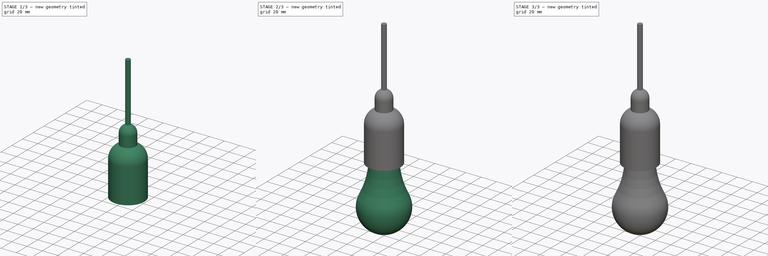
[diagram: build sequence overview — one tinted view per stage of 3, left to right]
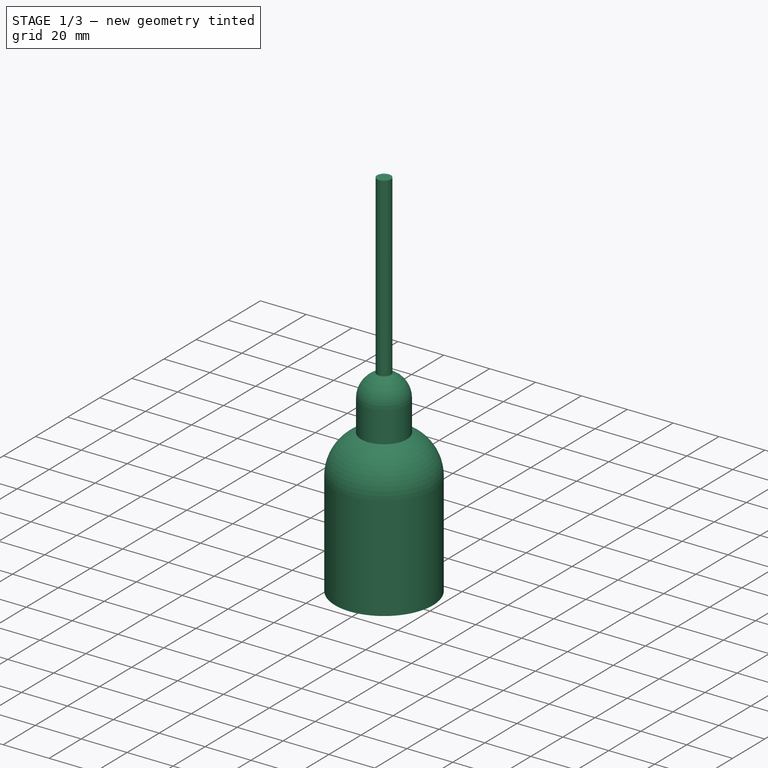
[diagram: stage 1 of 3 — iso view after this stage's code; geometry added in this stage tinted green]
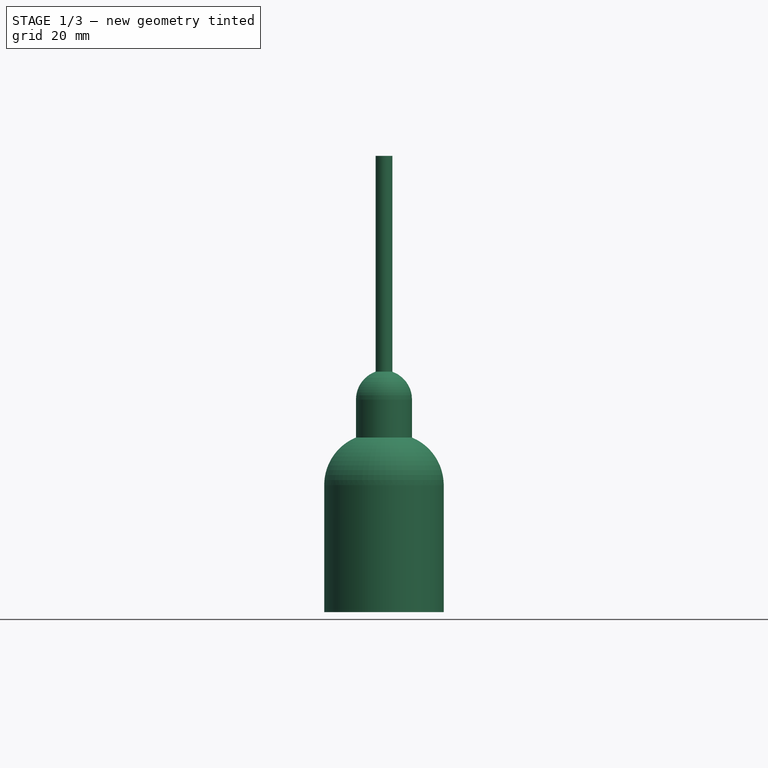
[diagram: stage 1 of 3 — front view after this stage's code; geometry added in this stage tinted green]
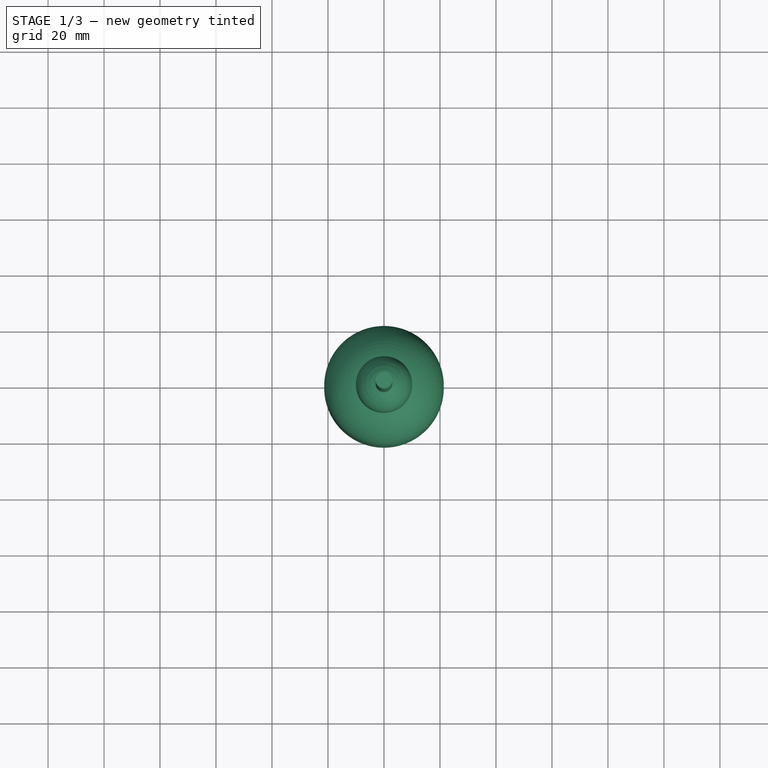
[diagram: stage 1 of 3 — top view after this stage's code; geometry added in this stage tinted green]
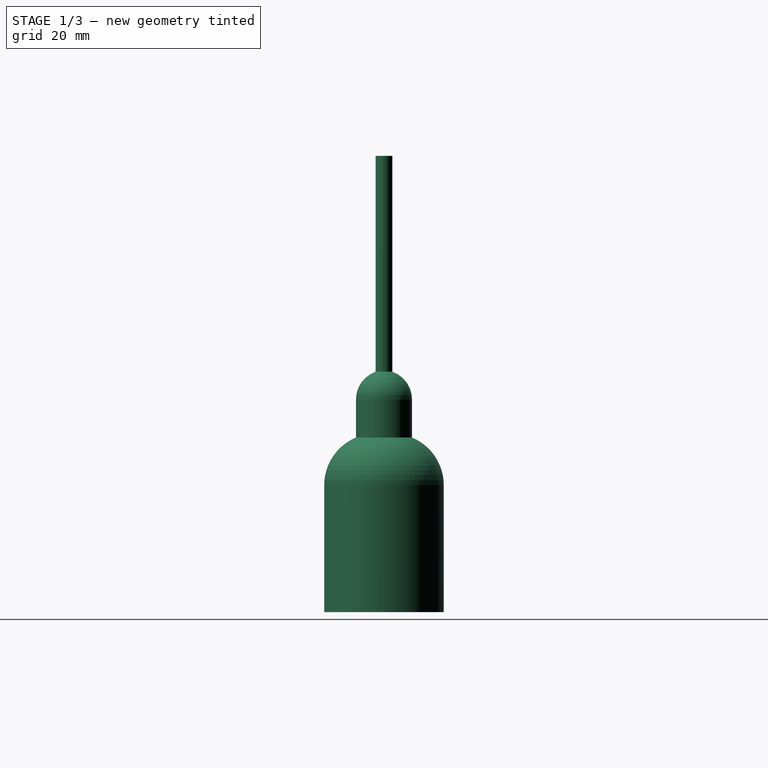
[diagram: stage 1 of 3 — right view after this stage's code; geometry added in this stage tinted green]
FCSTD DOCUMENT  (FreeCAD 0.19R24267 +99 (Git))
Label: Lamp
License: All rights reserved
LicenseURL: http://en.wikipedia.org/wiki/All_rights_reserved
objects: Sketcher::SketchObject×6, PartDesign::Body×5, PartDesign::Revolution×4, Part::Cylinder×2, PartDesign::AdditiveLoft×1
note: 23 computed .brp shape members not serialized (recipe doc carries the construction recipe); baked Part::Feature solids carry a one-line shape summary decoded from their .brp

FEATURE [PartDesign::Body] Body003
  Group = -> [Sketch004,Revolution002]
  Origin = -> Origin003
  Tip = -> Revolution002
FEATURE [Part::Cylinder] Cylinder001
  Angle = 360
  AttacherType = Attacher::AttachEngine3D
  Height = 100
  Radius = 3
FEATURE [Sketcher::SketchObject] Sketch005
  FullyConstrained = true
  MapMode = 5
  Placement = pos=(0,0,0) rot=(1,0,0;1.5708rad)
  Support = -> [XZ_Plane004]
  expr: Constraints[7] = 37.7mm / 2 + 0.5mm
  expr: Constraints[6] = 15mm / 2 + 0.5mm
  expr: Constraints[8] = 2mm + 59mm + 2mm
  sketch-geometry (10):
    g0: LineSegment StartX=-8 StartY=12.9398 StartZ=0 EndX=-8 EndY=-2 EndZ=0
    g1: ArcOfCircle CenterX=-2.95 CenterY=-17.6031 CenterZ=0 NormalX=0 NormalY=0 NormalZ=1 AngleXU=0 Radius=16.4 StartAngle=1.88381 EndAngle=3.14159
    g2: LineSegment StartX=-19.35 StartY=-17.6031 StartZ=0 EndX=-19.35 EndY=-63 EndZ=0
    g3: LineSegment StartX=-19.35 StartY=-63 StartZ=0 EndX=-21.35 EndY=-63 EndZ=0
    g4: LineSegment StartX=-21.35 StartY=-17.6031 StartZ=0 EndX=-21.35 EndY=-63 EndZ=0
    g5: ArcOfCircle CenterX=-2.95 CenterY=-17.6031 CenterZ=0 NormalX=0 NormalY=0 NormalZ=1 AngleXU=0 Radius=18.4 StartAngle=1.964 EndAngle=3.14159
    g6: LineSegment StartX=-10 StartY=-0.607316 StartZ=0 EndX=-10 EndY=12.9398 EndZ=0
    g7: LineSegment StartX=-3 StartY=20.75 StartZ=0 EndX=-3 EndY=22.9097 EndZ=0
    g8: ArcOfCircle CenterX=0.6 CenterY=12.9398 CenterZ=0 NormalX=0 NormalY=0 NormalZ=1 AngleXU=0 Radius=10.6 StartAngle=1.91731 EndAngle=3.14159
    g9: ArcOfCircle CenterX=0.6 CenterY=12.9398 CenterZ=0 NormalX=0 NormalY=0 NormalZ=1 AngleXU=0 Radius=8.6 StartAngle=2.0027 EndAngle=3.14159
  constraints (28):
    c: Vertical(g0)
    c: Tangent(g1,g2) = -1.5708
    c: Coincident(g2,g3)
    c: Horizontal(g3)
    c: Vertical(g2)
    c: DistanceY(g0,g-1) = 2
    c: DistanceX(g0,g-1) = 8
    c: DistanceX(g1,g-1) = 19.35
    c: DistanceY(g2,g-1) = 63
    c: DistanceX(g3,g2) = 2
    c: Coincident(g4,g3)
    c: Vertical(g4)
    c: Coincident(g5,g1)
    c: Coincident(g6,g5)
    c: Vertical(g6)
    c: DistanceX(g5,g0) = 2
    c: Vertical(g7)
    c: Tangent(g5,g4) = -1.5708
    c: DistanceX(g7,g-1) = 3
    c: Tangent(g6,g8) = 1.5708
    c: Tangent(g0,g9) = -1.5708
    c: Coincident(g8,g9)
    c: Coincident(g0,g1)
    c: Radius(g1) = 16.4
    c: Coincident(g7,g9)
    c: Coincident(g7,g8)
    c: Radius(g9) = 8.6
    c: DistanceY(g-1,g7) = 20.75
FEATURE [PartDesign::Revolution] Revolution003
  Angle = 360
  Axis = (0,-2e-16,1)
  Base = (0,0,0)
  Placement = pos=(0,0,0) rot=(1,0,0;1.5708rad)
  Profile = -> Sketch005
  ReferenceAxis = -> Sketch005 [V_Axis]
FEATURE [PartDesign::Body] Body004
  Group = -> [Sketch005,Revolution003]
  Origin = -> Origin004
  Tip = -> Revolution003
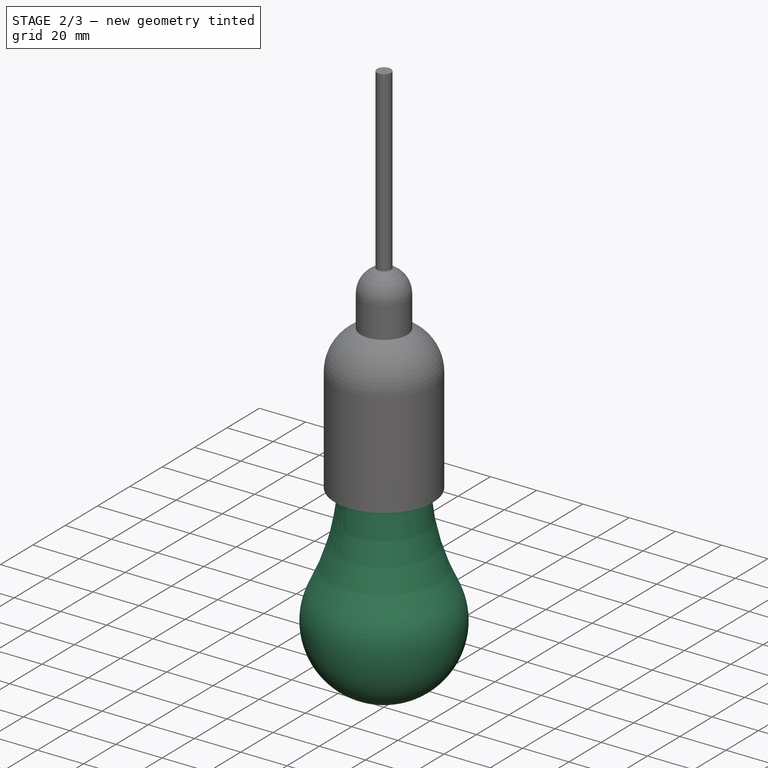
[diagram: stage 2 of 3 — iso view after this stage's code; geometry added in this stage tinted green]
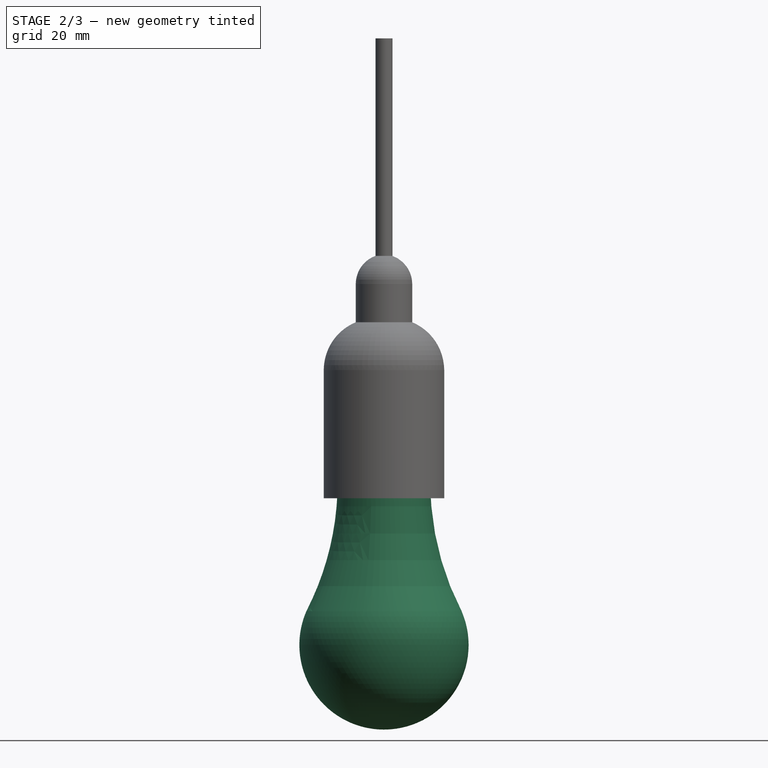
[diagram: stage 2 of 3 — front view after this stage's code; geometry added in this stage tinted green]
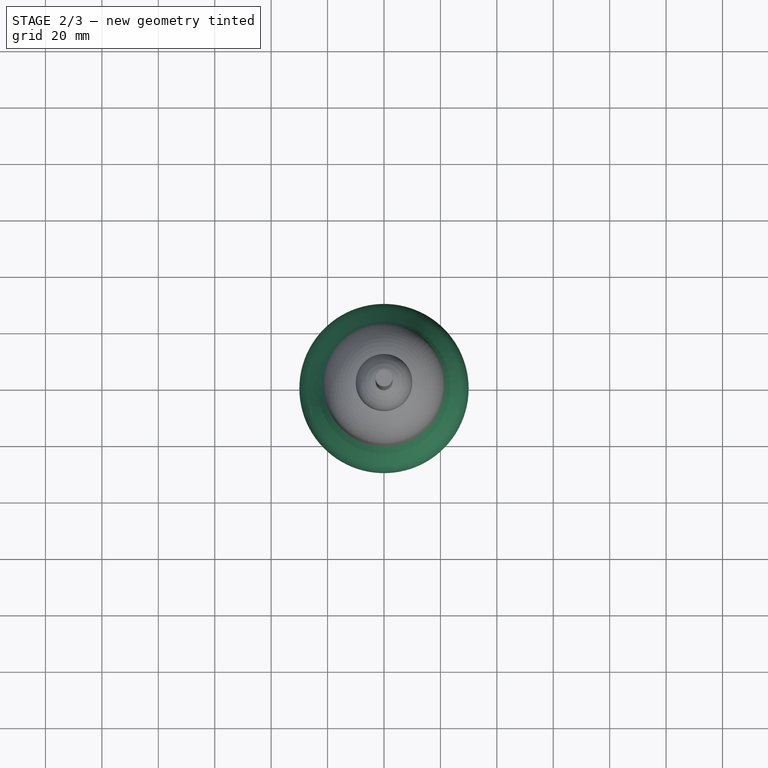
[diagram: stage 2 of 3 — top view after this stage's code; geometry added in this stage tinted green]
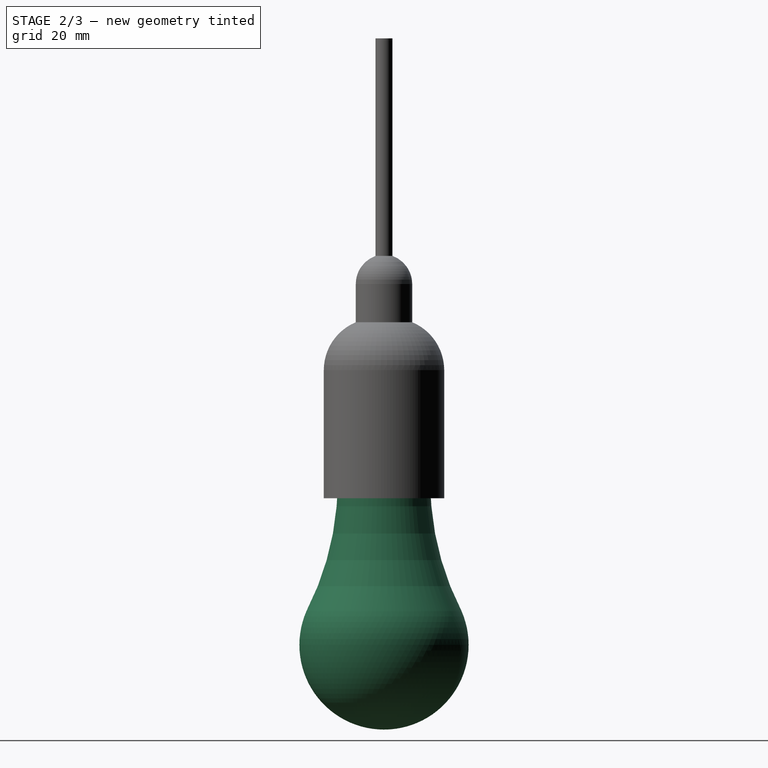
[diagram: stage 2 of 3 — right view after this stage's code; geometry added in this stage tinted green]
FEATURE [Sketcher::SketchObject] Sketch002
  FullyConstrained = true
  MapMode = 5
  Placement = pos=(0,0,0) rot=(1,0,0;1.5708rad)
  Support = -> [XZ_Plane001]
  sketch-geometry (5):
    g0: LineSegment StartX=-18.85 StartY=-61 StartZ=0 EndX=-18.85 EndY=-17 EndZ=0
    g1: ArcOfCircle CenterX=-3.26311 CenterY=-17 CenterZ=0 NormalX=0 NormalY=0 NormalZ=1 AngleXU=0 Radius=15.5869 StartAngle=1.84608 EndAngle=3.14159
    g2: LineSegment StartX=-7.5 StartY=-2 StartZ=0 EndX=0 EndY=-2 EndZ=0
    g3: LineSegment StartX=0 StartY=-61 StartZ=0 EndX=-18.85 EndY=-61 EndZ=0
    g4: LineSegment StartX=0 StartY=-2 StartZ=0 EndX=0 EndY=-61 EndZ=0
  constraints (15):
    c: Vertical(g0)
    c: Tangent(g0,g1) = 1.5708
    c: Coincident(g1,g2)
    c: Coincident(g3,g0)
    c: Horizontal(g3)
    c: DistanceY(g3,g2) = 59
    c: DistanceY(g2,g-1) = 2
    c: PointOnObject(g2,g-2)
    c: PointOnObject(g3,g-2)
    c: Coincident(g4,g2)
    c: Coincident(g4,g3)
    c: DistanceX(g0,g3) = 18.85
    c: Horizontal(g2)
    c: DistanceY(g0,g1) = 15
    c: DistanceX(g1,g2) = 7.5
FEATURE [PartDesign::Revolution] Revolution
  Angle = 360
  Axis = (0,2e-16,1)
  Base = (0,0,0)
  Placement = pos=(0,0,0) rot=(1,0,0;1.5708rad)
  Profile = -> Sketch002
  ReferenceAxis = -> Sketch002 [V_Axis]
FEATURE [PartDesign::Body] Body001
  Group = -> [Sketch002,Revolution]
  Origin = -> Origin001
  Tip = -> Revolution
FEATURE [Sketcher::SketchObject] Sketch003
  FullyConstrained = true
  MapMode = 5
  Placement = pos=(0,0,0) rot=(1,0,0;1.5708rad)
  Support = -> [XZ_Plane002]
  expr: Constraints[12] = 2mm + 59mm
  sketch-geometry (4):
    g0: LineSegment StartX=0 StartY=-61 StartZ=0 EndX=0 EndY=-103 EndZ=0
    g1: LineSegment StartX=0 StartY=-103 StartZ=0 EndX=-27.5 EndY=-103 EndZ=0
    g2: LineSegment StartX=-16.5 StartY=-61 StartZ=0 EndX=0 EndY=-61 EndZ=0
    g3: ArcOfCircle CenterX=-116.43 CenterY=-57.2682 CenterZ=0 NormalX=0 NormalY=0 NormalZ=1 AngleXU=0 Radius=100 StartAngle=5.80821 EndAngle=6.24586
  constraints (13):
    c: PointOnObject(g0,g-2)
    c: Vertical(g0)
    c: Coincident(g0,g1)
    c: Coincident(g2,g0)
    c: Horizontal(g2)
    c: DistanceX(g2,g0) = 16.5
    c: Horizontal(g1)
    c: DistanceX(g1,g0) = 27.5
    c: Coincident(g3,g2)
    c: Coincident(g3,g1)
    c: DistanceY(g0,g0) = 42
    c: Radius(g3) = 100
    c: DistanceY(g0,g-1) = 61
FEATURE [PartDesign::Revolution] Revolution001
  Angle = 360
  Axis = (0,2e-16,1)
  Base = (0,0,0)
  Placement = pos=(0,0,0) rot=(1,0,0;1.5708rad)
  Profile = -> Sketch003
  ReferenceAxis = -> Sketch003 [V_Axis]
FEATURE [PartDesign::Body] Body002
  Group = -> [Sketch003,Revolution001]
  Origin = -> Origin002
  Tip = -> Revolution001
FEATURE [Sketcher::SketchObject] Sketch004
  FullyConstrained = true
  MapMode = 5
  Placement = pos=(0,0,0) rot=(1,0,0;1.5708rad)
  Support = -> [XZ_Plane003]
  expr: Constraints[9] = 2mm + 59mm + 42mm
  sketch-geometry (3):
    g0: LineSegment StartX=-5.5e-15 StartY=-103 StartZ=0 EndX=-27.4955 EndY=-103 EndZ=0
    g1: ArcOfCircle CenterX=0 CenterY=-115 CenterZ=0 NormalX=0 NormalY=0 NormalZ=1 AngleXU=0 Radius=30 StartAngle=2.73008 EndAngle=4.71239
    g2: LineSegment StartX=-5.5e-15 StartY=-145 StartZ=0 EndX=-5.5e-15 EndY=-103 EndZ=0
  constraints (10):
    c: PointOnObject(g0,g-2)
    c: Horizontal(g0)
    c: Coincident(g1,g2)
    c: Coincident(g2,g0)
    c: Vertical(g2)
    c: Coincident(g1,g0)
    c: PointOnObject(g1,g-2)
    c: Diameter(g1) = 60
    c: DistanceY(g2,g2) = 42
    c: DistanceY(g0,g-1) = 103
FEATURE [PartDesign::Revolution] Revolution002
  Angle = 360
  Axis = (0,2e-16,1)
  Base = (0,0,0)
  Placement = pos=(0,0,0) rot=(1,0,0;1.5708rad)
  Profile = -> Sketch004
  ReferenceAxis = -> Sketch004 [V_Axis]
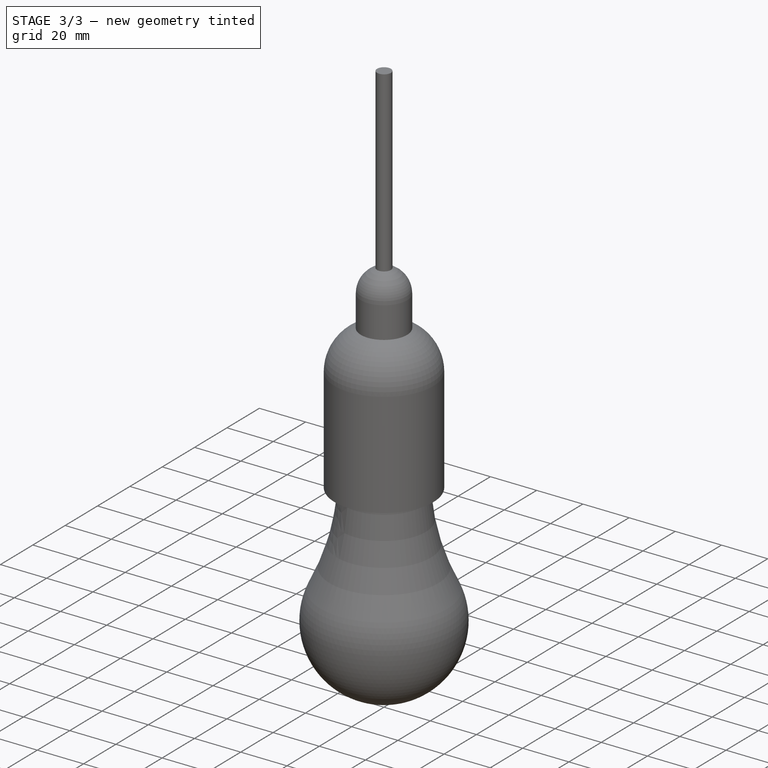
[diagram: stage 3 of 3 — iso view after this stage's code; geometry added in this stage tinted green]
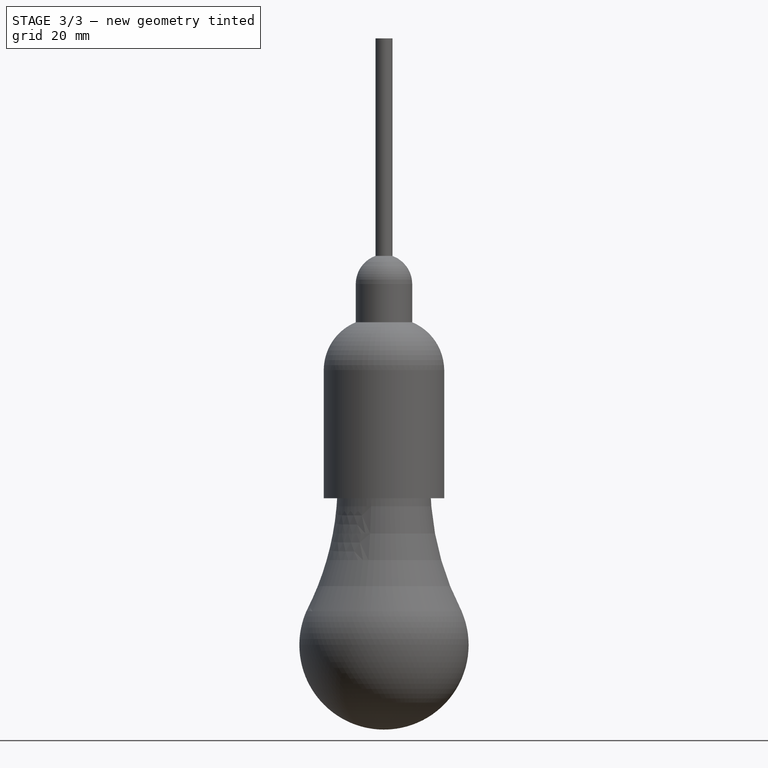
[diagram: stage 3 of 3 — front view after this stage's code; geometry added in this stage tinted green]
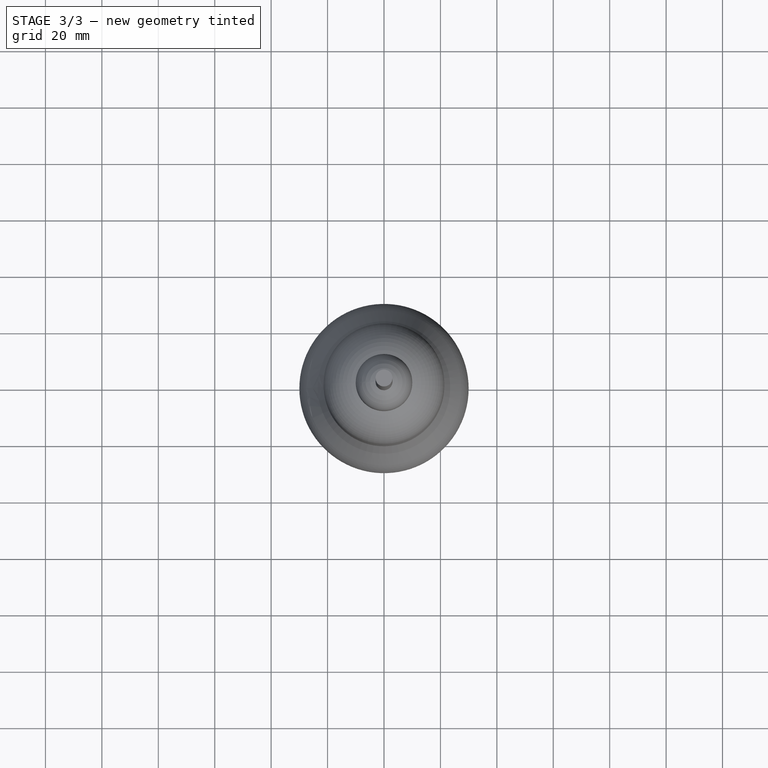
[diagram: stage 3 of 3 — top view after this stage's code; geometry added in this stage tinted green]
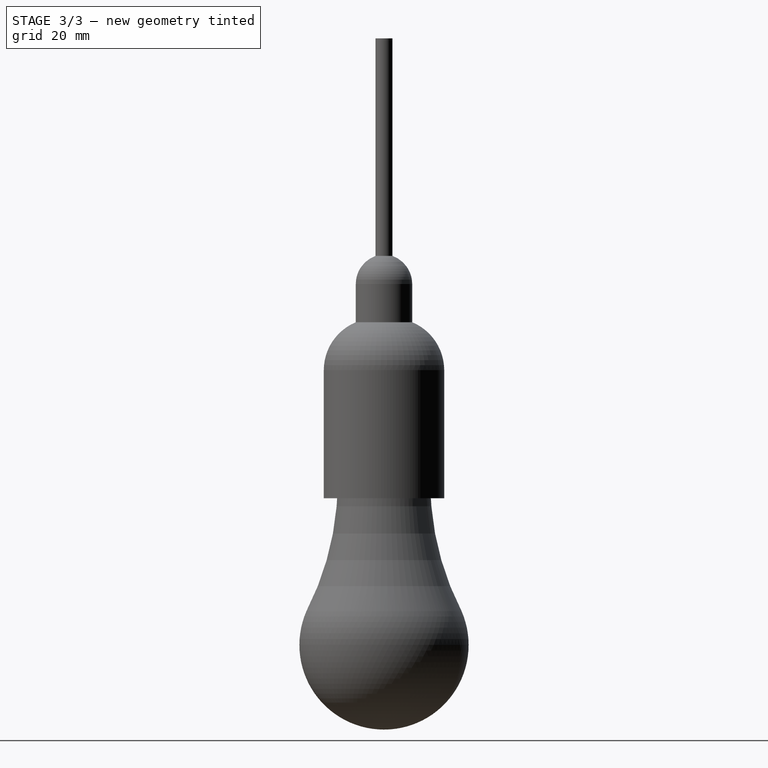
[diagram: stage 3 of 3 — right view after this stage's code; geometry added in this stage tinted green]
FEATURE [Sketcher::SketchObject] Sketch
  FullyConstrained = true
  MapMode = 5
  Support = -> [XY_Plane]
  sketch-geometry (1):
    g0: Circle CenterX=0 CenterY=0 CenterZ=0 NormalX=0 NormalY=0 NormalZ=1 AngleXU=0 Radius=7.5
  constraints (2):
    c: Coincident(g0,g-1)
    c: Diameter(g0) = 15
FEATURE [Sketcher::SketchObject] Sketch001
  AttachmentOffset = pos=(0,0,19) rot=(0,0,1;0rad)
  FullyConstrained = true
  MapMode = 5
  Placement = pos=(0,0,19) rot=(0,0,1;0rad)
  Support = -> [XY_Plane]
  sketch-geometry (1):
    g0: Circle CenterX=0 CenterY=0 CenterZ=0 NormalX=0 NormalY=0 NormalZ=1 AngleXU=0 Radius=5.5
  constraints (2):
    c: Coincident(g0,g-1)
    c: Diameter(g0) = 11
FEATURE [PartDesign::AdditiveLoft] AdditiveLoft
  Closed = false
  Profile = -> Sketch
  Ruled = false
  Sections = -> [Sketch001]
FEATURE [PartDesign::Body] Body
  Group = -> [Sketch,Sketch001,AdditiveLoft]
  Origin = -> Origin
  Tip = -> AdditiveLoft
FEATURE [Part::Cylinder] Cylinder
  Angle = 360
  AttacherType = Attacher::AttachEngine3D
  Height = 2
  Placement = pos=(0,0,-2) rot=(0,0,1;0rad)
  Radius = 7.5
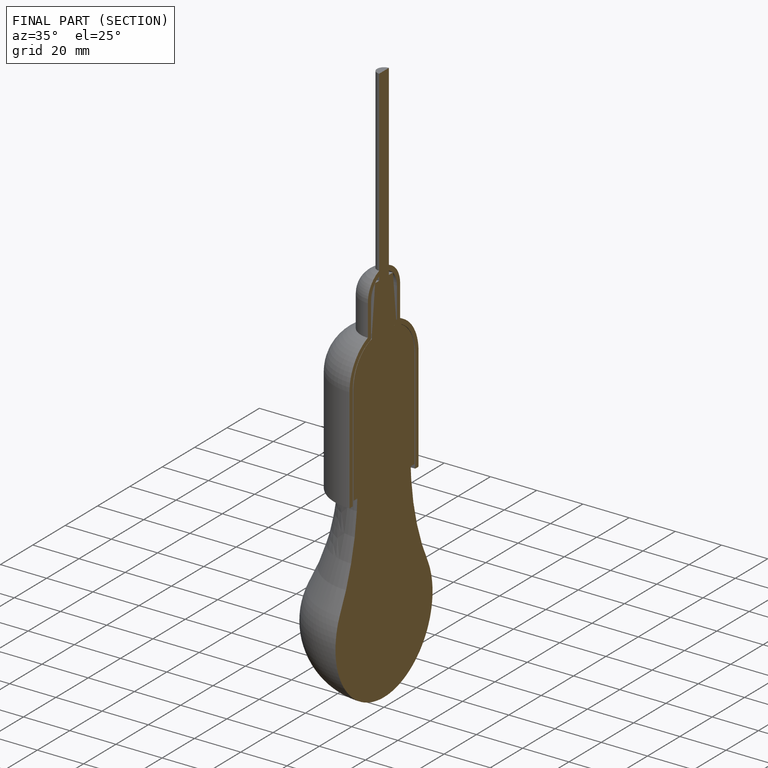
[diagram: finished part — half-section view (interior)]
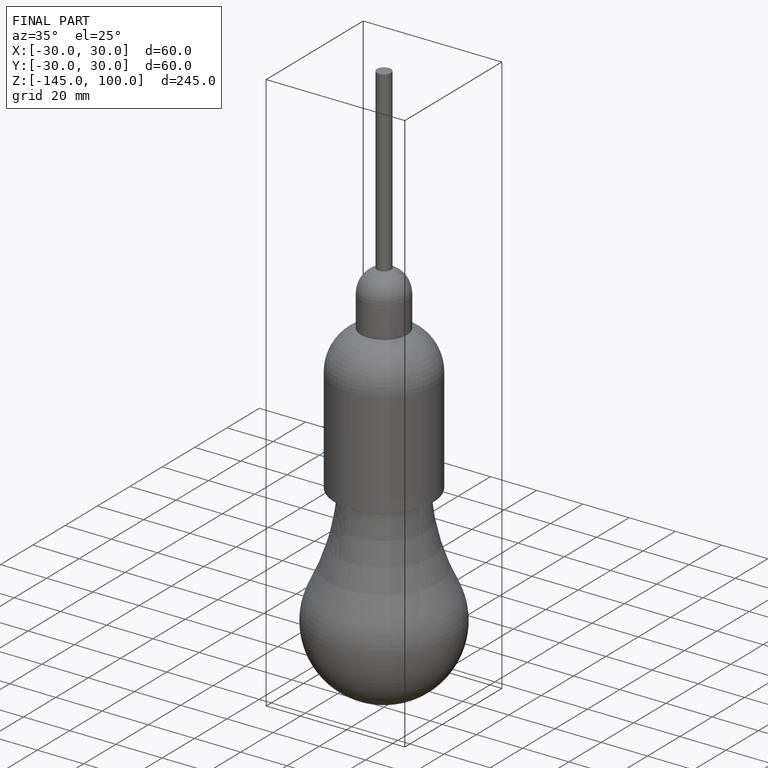
[diagram: finished part — iso view with bounding-box wireframe]
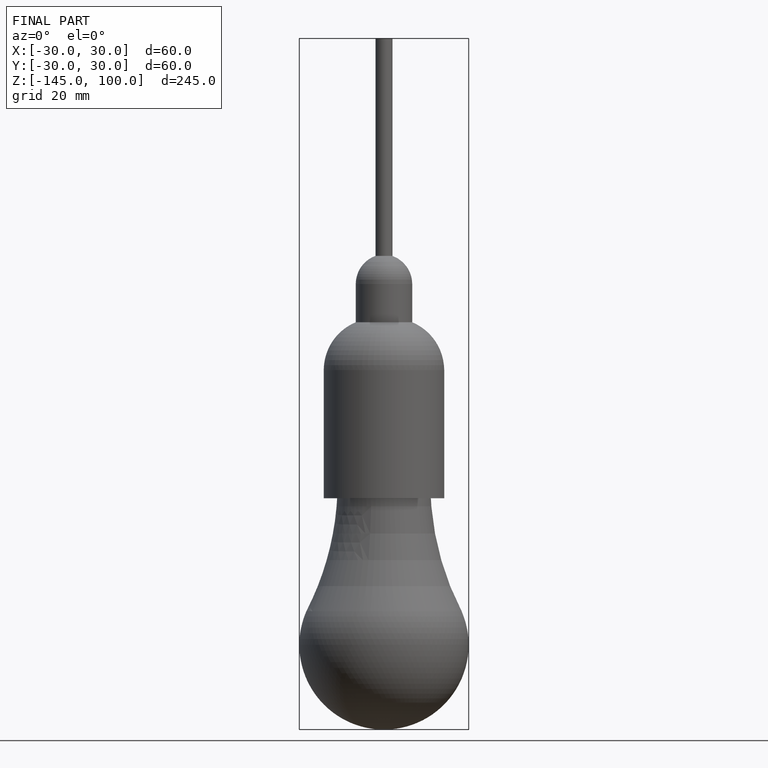
[diagram: finished part — front view with bounding-box wireframe]
